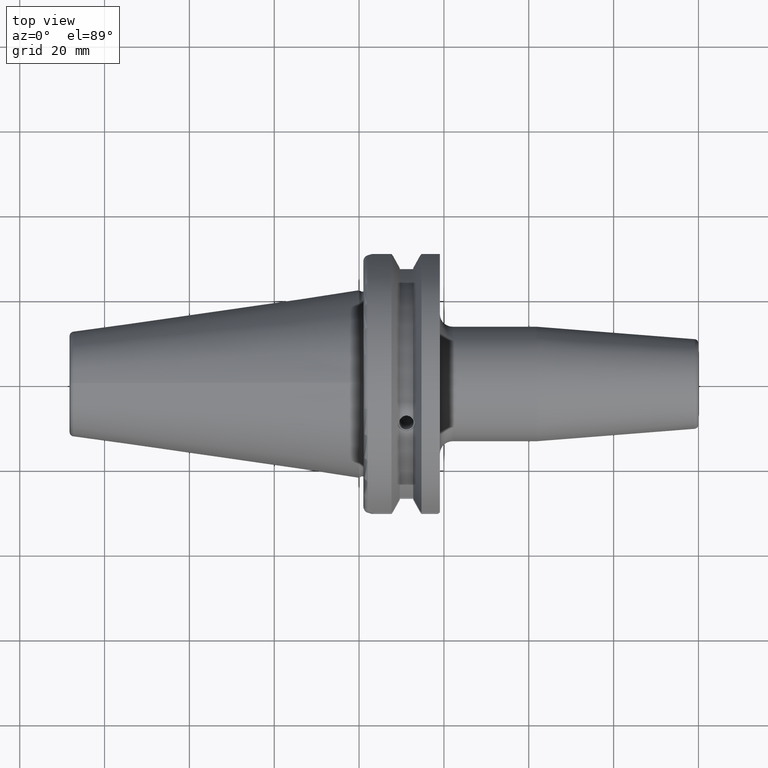
[diagram: clean part render]
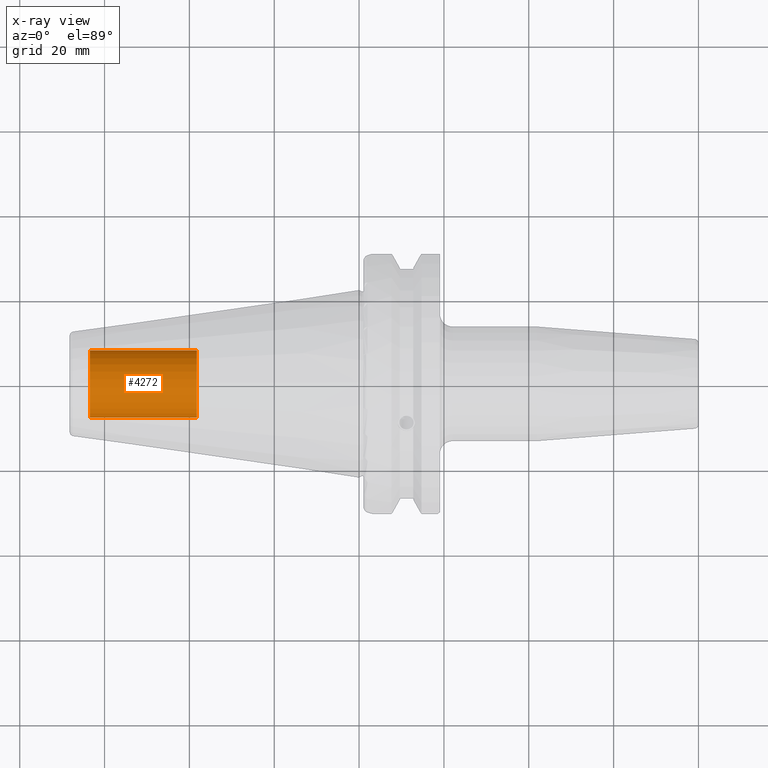
[diagram: x-ray — body ghosted, one internal face saturated and labeled with its STEP entity id]
A machine part, top view, then the same camera in x-ray: the body is ghosted and one INTERNAL B-rep face — a face not visible from any outside direction — is saturated and labeled: STEP entity #4272.
In plain terms, the highlighted cylindrical surface (edge-blend (fillet) strip) has radius 7.9375 mm, axis along (-1, 0, 0).
Its self-contained STEP definition (entity closure, byte-faithful):
#4198=CARTESIAN_POINT('',(-6.345E1,0.E0,0.E0));
#4199=DIRECTION('',(1.E0,0.E0,0.E0));
#4200=DIRECTION('',(0.E0,1.E0,0.E0));
#4201=AXIS2_PLACEMENT_3D('',#4198,#4199,#4200);
#4203=DIRECTION('',(1.E0,0.E0,0.E0));
#4204=VECTOR('',#4203,2.52E1);
#4205=CARTESIAN_POINT('',(-6.345E1,-7.9375E0,0.E0));
#4206=LINE('',#4205,#4204);
#4207=DIRECTION('',(1.E0,0.E0,0.E0));
#4208=VECTOR('',#4207,2.52E1);
#4209=CARTESIAN_POINT('',(-6.345E1,7.9375E0,0.E0));
#4210=LINE('',#4209,#4208);
#4211=CARTESIAN_POINT('',(-3.825E1,0.E0,0.E0));
#4212=DIRECTION('',(1.E0,0.E0,0.E0));
#4213=DIRECTION('',(0.E0,1.E0,0.E0));
#4214=AXIS2_PLACEMENT_3D('',#4211,#4212,#4213);
#4231=CARTESIAN_POINT('',(-3.825E1,7.9375E0,0.E0));
#4232=CARTESIAN_POINT('',(-3.825E1,-7.9375E0,0.E0));
#4233=VERTEX_POINT('',#4231);
#4234=VERTEX_POINT('',#4232);
#4235=CARTESIAN_POINT('',(-6.345E1,7.9375E0,0.E0));
#4236=CARTESIAN_POINT('',(-6.345E1,-7.9375E0,0.E0));
#4237=VERTEX_POINT('',#4235);
#4238=VERTEX_POINT('',#4236);
#4259=CARTESIAN_POINT('',(-1.658367445015E1,0.E0,0.E0));
#4260=DIRECTION('',(-1.E0,0.E0,0.E0));
#4261=DIRECTION('',(0.E0,1.E0,0.E0));
#4262=AXIS2_PLACEMENT_3D('',#4259,#4260,#4261);
#4263=CYLINDRICAL_SURFACE('',#4262,7.9375E0);
#4265=ORIENTED_EDGE('',*,*,#4264,.T.);
#4266=ORIENTED_EDGE('',*,*,#4254,.T.);
#4268=ORIENTED_EDGE('',*,*,#4267,.F.);
#4269=ORIENTED_EDGE('',*,*,#4250,.F.);
#4270=EDGE_LOOP('',(#4265,#4266,#4268,#4269));
#4271=FACE_OUTER_BOUND('',#4270,.F.);
#4272=ADVANCED_FACE('',(#4271),#4263,.F.);
#4202=CIRCLE('',#4201,7.9375E0);
#4215=CIRCLE('',#4214,7.9375E0);
#4250=EDGE_CURVE('',#4237,#4233,#4210,.T.);
#4254=EDGE_CURVE('',#4238,#4234,#4206,.T.);
#4264=EDGE_CURVE('',#4237,#4238,#4202,.T.);
#4267=EDGE_CURVE('',#4233,#4234,#4215,.T.);